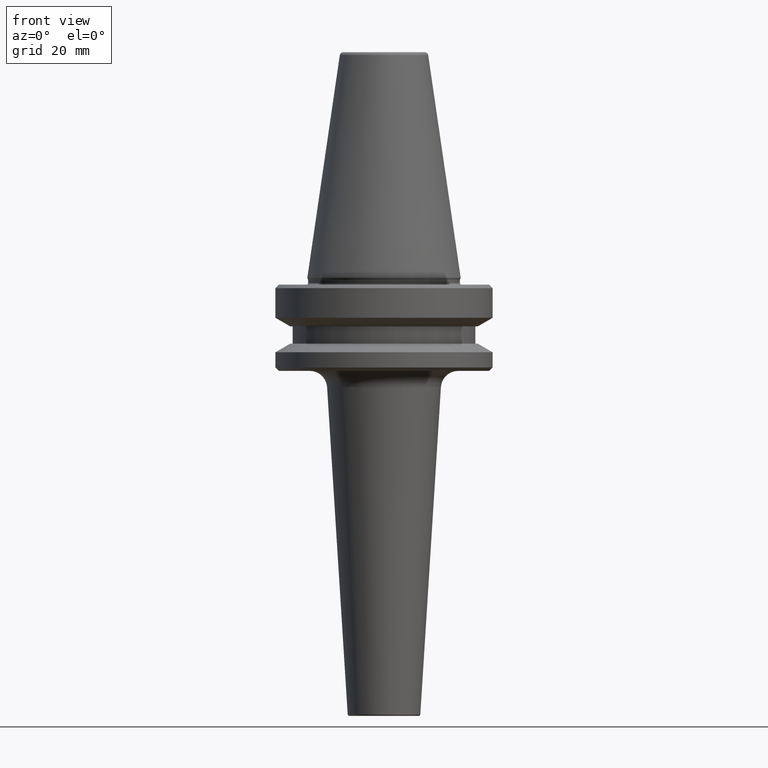
[diagram: clean part render]
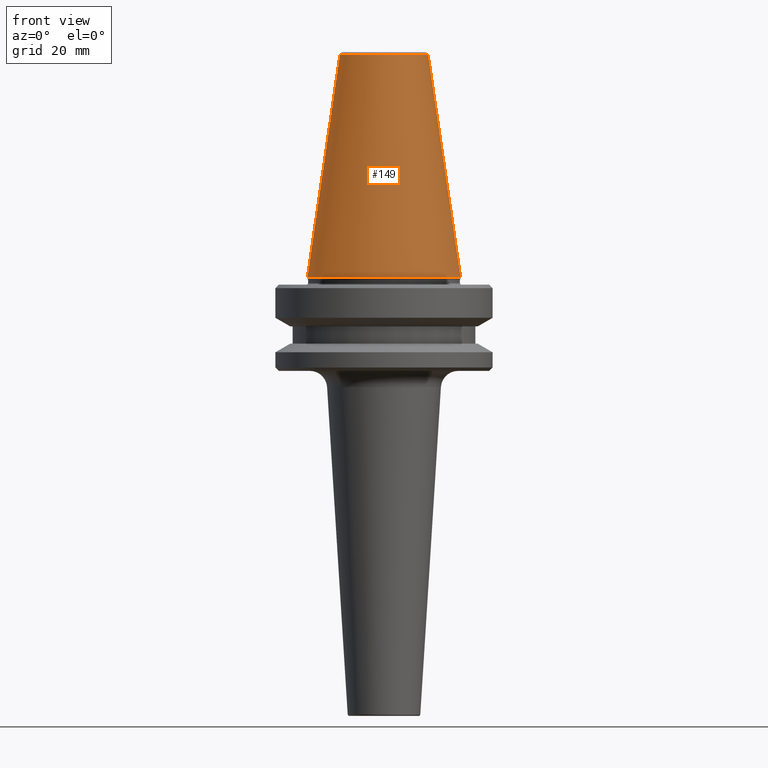
[diagram: same view with one face highlighted and labeled with its STEP entity id]
A machine part, front view. The second image highlights one B-rep face of the part: STEP entity #149.
In plain terms, the highlighted conical surface has half-angle 8.297 deg.
Its self-contained STEP definition (entity closure, byte-faithful):
#11 = CONICAL_SURFACE ( 'NONE', #997, 12.81220206925736900, 0.1448138077623198300 ) ;
#18 = CARTESIAN_POINT ( 'NONE',  ( 22.22499999999993700, 0.0000000000000000000, -65.40000000000057400 ) ) ;
#53 = CARTESIAN_POINT ( 'NONE',  ( 0.0000000000000000000, 0.0000000000000000000, -65.40000000000057400 ) ) ;
#85 = CIRCLE ( 'NONE', #508, 22.22499999999993700 ) ;
#112 = LINE ( 'NONE', #1029, #751 ) ;
#126 = VERTEX_POINT ( 'NONE', #1018 ) ;
#134 = DIRECTION ( 'NONE',  ( 1.000000000000000000, 0.0000000000000000000, 0.0000000000000000000 ) ) ;
#149 = ADVANCED_FACE ( 'NONE', ( #596 ), #11, .T. ) ;
#195 = ORIENTED_EDGE ( 'NONE', *, *, #1039, .T. ) ;
#207 = EDGE_CURVE ( 'NONE', #126, #515, #398, .T. ) ;
#213 = DIRECTION ( 'NONE',  ( 0.0000000000000000000, 0.0000000000000000000, -1.000000000000000000 ) ) ;
#219 = ORIENTED_EDGE ( 'NONE', *, *, #327, .T. ) ;
#238 = VERTEX_POINT ( 'NONE', #530 ) ;
#268 = VECTOR ( 'NONE', #750, 1000.000000000000000 ) ;
#304 = DIRECTION ( 'NONE',  ( -1.000000000000000000, 0.0000000000000000000, 0.0000000000000000000 ) ) ;
#327 = EDGE_CURVE ( 'NONE', #238, #394, #85, .T. ) ;
#394 = VERTEX_POINT ( 'NONE', #18 ) ;
#398 = CIRCLE ( 'NONE', #782, 12.81220206925736900 ) ;
#477 = LINE ( 'NONE', #550, #268 ) ;
#481 = DIRECTION ( 'NONE',  ( -0.0000000000000000000, -0.0000000000000000000, 1.000000000000000000 ) ) ;
#498 = ORIENTED_EDGE ( 'NONE', *, *, #800, .F. ) ;
#508 = AXIS2_PLACEMENT_3D ( 'NONE', #53, #481, #134 ) ;
#515 = VERTEX_POINT ( 'NONE', #961 ) ;
#530 = CARTESIAN_POINT ( 'NONE',  ( -22.22499999999993700, 2.721777511104985000E-015, -65.40000000000057400 ) ) ;
#550 = CARTESIAN_POINT ( 'NONE',  ( 12.81220206925736900, 1.569042225414513200E-015, -0.8556918111122247000 ) ) ;
#596 = FACE_OUTER_BOUND ( 'NONE', #759, .T. ) ;
#607 = DIRECTION ( 'NONE',  ( -0.0000000000000000000, -0.0000000000000000000, 1.000000000000000000 ) ) ;
#703 = DIRECTION ( 'NONE',  ( -0.1443081888881795900, 0.0000000000000000000, -0.9895327920891826600 ) ) ;
#707 = CARTESIAN_POINT ( 'NONE',  ( 0.0000000000000000000, 0.0000000000000000000, -0.8556918111122247000 ) ) ;
#750 = DIRECTION ( 'NONE',  ( 0.1443081888881795900, 1.767265616126607700E-017, -0.9895327920891826600 ) ) ;
#751 = VECTOR ( 'NONE', #703, 1000.000000000000000 ) ;
#759 = EDGE_LOOP ( 'NONE', ( #498, #1004, #195, #219 ) ) ;
#782 = AXIS2_PLACEMENT_3D ( 'NONE', #707, #607, #935 ) ;
#800 = EDGE_CURVE ( 'NONE', #515, #394, #477, .T. ) ;
#935 = DIRECTION ( 'NONE',  ( 1.000000000000000000, 0.0000000000000000000, 0.0000000000000000000 ) ) ;
#961 = CARTESIAN_POINT ( 'NONE',  ( 12.81220206925736900, 2.145409868259749100E-015, -0.8556918111122247000 ) ) ;
#997 = AXIS2_PLACEMENT_3D ( 'NONE', #1028, #213, #304 ) ;
#1004 = ORIENTED_EDGE ( 'NONE', *, *, #207, .F. ) ;
#1018 = CARTESIAN_POINT ( 'NONE',  ( -12.81220206925736900, 0.0000000000000000000, -0.8556918111122247000 ) ) ;
#1028 = CARTESIAN_POINT ( 'NONE',  ( 0.0000000000000000000, 0.0000000000000000000, -0.8556918111122247000 ) ) ;
#1029 = CARTESIAN_POINT ( 'NONE',  ( -12.81220206925736900, 0.0000000000000000000, -0.8556918111122247000 ) ) ;
#1039 = EDGE_CURVE ( 'NONE', #126, #238, #112, .T. ) ;